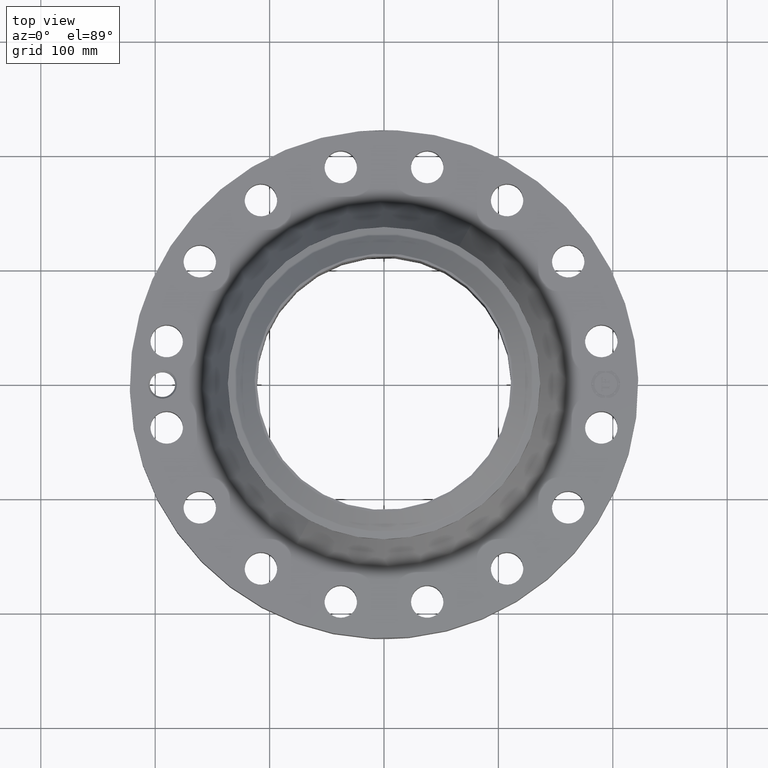
[diagram: clean part render]
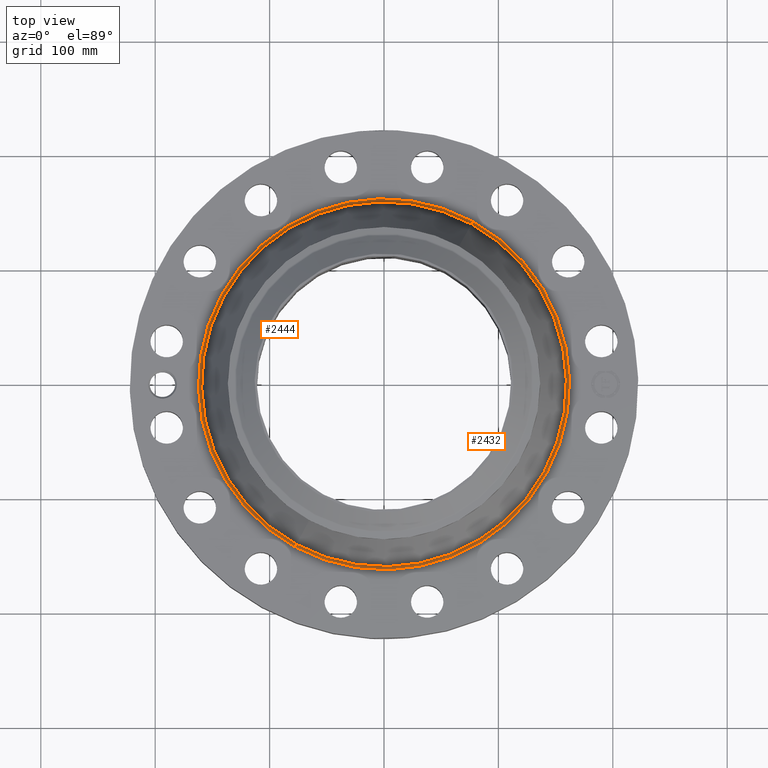
[diagram: same view with one multi-face feature highlighted, each face labeled with its STEP entity id]
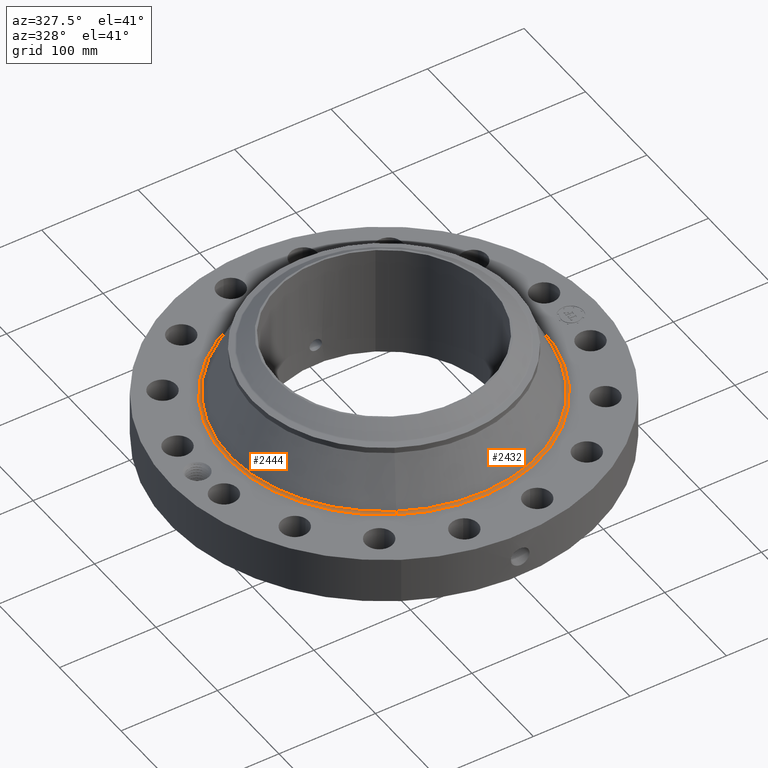
[diagram: same view with one multi-face feature highlighted, each face labeled with its STEP entity id]
A machine part, top view. The highlighted faces form ONE feature: a constant-radius fillet chain: 2 tangent blend faces with common blend radius 3.048 mm. The faces share edges in the B-rep.
A second angle (auxiliary view) of the same feature is appended — it is thin or edge-on in the first view.
Their STEP definitions:
[1] entity #2444 (Torus):
#707=AXIS2_PLACEMENT_3D('Circle Axis2P3D',#705,#706,$) ;
#2405=AXIS2_PLACEMENT_3D('Torus Axis2P3D',#2402,#2403,#2404) ;
#2409=AXIS2_PLACEMENT_3D('Circle Axis2P3D',#2407,#2408,$) ;
#2423=AXIS2_PLACEMENT_3D('Circle Axis2P3D',#2421,#2422,$) ;
#2435=AXIS2_PLACEMENT_3D('Circle Axis2P3D',#2433,#2434,$) ;
#705=CARTESIAN_POINT('Axis2P3D Location',(0.,0.,1.94000000001)) ;
#709=CARTESIAN_POINT('Vertex',(-3.06135849607,-5.60377913882,1.94000000001)) ;
#711=CARTESIAN_POINT('Vertex',(3.06135849607,5.60377913882,1.94000000001)) ;
#2402=CARTESIAN_POINT('Axis2P3D Location',(0.,0.,2.06000000001)) ;
#2407=CARTESIAN_POINT('Axis2P3D Location',(3.06135849607,5.60377913882,2.06000000001)) ;
#2411=CARTESIAN_POINT('Vertex',(3.00950355542,5.50885930664,2.00802605857)) ;
#2418=CARTESIAN_POINT('Vertex',(-3.00950355542,-5.50885930664,2.00802605857)) ;
#2421=CARTESIAN_POINT('Axis2P3D Location',(-3.06135849607,-5.60377913882,2.06000000001)) ;
#2433=CARTESIAN_POINT('Axis2P3D Location',(0.,0.,2.00802605857)) ;
#706=DIRECTION('Axis2P3D Direction',(0.,0.,-0.0393700787402)) ;
#2403=DIRECTION('Axis2P3D Direction',(0.,0.,-0.0393700787402)) ;
#2404=DIRECTION('Axis2P3D XDirection',(-0.0188750212049,-0.0345504945626,0.)) ;
#2408=DIRECTION('Axis2P3D Direction',(-0.0345504945626,0.0188750212049,0.)) ;
#2422=DIRECTION('Axis2P3D Direction',(0.0345504945626,-0.0188750212049,0.)) ;
#2434=DIRECTION('Axis2P3D Direction',(0.,0.,-0.0393700787402)) ;
#2439=ORIENTED_EDGE('',*,*,#713,.F.) ;
#2440=ORIENTED_EDGE('',*,*,#2425,.T.) ;
#2441=ORIENTED_EDGE('',*,*,#2437,.T.) ;
#2442=ORIENTED_EDGE('',*,*,#2413,.F.) ;
#2444=ADVANCED_FACE('PartBody',(#2443),#2406,.F.) ;
#708=CIRCLE('generated circle',#707,6.38547229875) ;
#2410=CIRCLE('generated circle',#2409,0.12) ;
#2424=CIRCLE('generated circle',#2423,0.12) ;
#2436=CIRCLE('generated circle',#2435,6.2773117264) ;
#2406=TOROIDAL_SURFACE('homeo Torus',#2405,6.38547229875,0.12) ;
#713=EDGE_CURVE('',#710,#712,#708,.T.) ;
#2413=EDGE_CURVE('',#712,#2412,#2410,.T.) ;
#2425=EDGE_CURVE('',#710,#2419,#2424,.T.) ;
#2437=EDGE_CURVE('',#2419,#2412,#2436,.T.) ;
#2438=EDGE_LOOP('',(#2439,#2440,#2441,#2442)) ;
#2443=FACE_OUTER_BOUND('',#2438,.T.) ;
#710=VERTEX_POINT('',#709) ;
#712=VERTEX_POINT('',#711) ;
#2412=VERTEX_POINT('',#2411) ;
#2419=VERTEX_POINT('',#2418) ;
[2] entity #2432 (Torus):
#716=AXIS2_PLACEMENT_3D('Circle Axis2P3D',#714,#715,$) ;
#2405=AXIS2_PLACEMENT_3D('Torus Axis2P3D',#2402,#2403,#2404) ;
#2409=AXIS2_PLACEMENT_3D('Circle Axis2P3D',#2407,#2408,$) ;
#2416=AXIS2_PLACEMENT_3D('Circle Axis2P3D',#2414,#2415,$) ;
#2423=AXIS2_PLACEMENT_3D('Circle Axis2P3D',#2421,#2422,$) ;
#709=CARTESIAN_POINT('Vertex',(-3.06135849607,-5.60377913882,1.94000000001)) ;
#711=CARTESIAN_POINT('Vertex',(3.06135849607,5.60377913882,1.94000000001)) ;
#714=CARTESIAN_POINT('Axis2P3D Location',(0.,0.,1.94000000001)) ;
#2402=CARTESIAN_POINT('Axis2P3D Location',(0.,0.,2.06000000001)) ;
#2407=CARTESIAN_POINT('Axis2P3D Location',(3.06135849607,5.60377913882,2.06000000001)) ;
#2411=CARTESIAN_POINT('Vertex',(3.00950355542,5.50885930664,2.00802605857)) ;
#2414=CARTESIAN_POINT('Axis2P3D Location',(0.,0.,2.00802605857)) ;
#2418=CARTESIAN_POINT('Vertex',(-3.00950355542,-5.50885930664,2.00802605857)) ;
#2421=CARTESIAN_POINT('Axis2P3D Location',(-3.06135849607,-5.60377913882,2.06000000001)) ;
#715=DIRECTION('Axis2P3D Direction',(0.,0.,-0.0393700787402)) ;
#2403=DIRECTION('Axis2P3D Direction',(0.,0.,-0.0393700787402)) ;
#2404=DIRECTION('Axis2P3D XDirection',(-0.0188750212049,-0.0345504945626,0.)) ;
#2408=DIRECTION('Axis2P3D Direction',(-0.0345504945626,0.0188750212049,0.)) ;
#2415=DIRECTION('Axis2P3D Direction',(0.,0.,-0.0393700787402)) ;
#2422=DIRECTION('Axis2P3D Direction',(0.0345504945626,-0.0188750212049,0.)) ;
#2427=ORIENTED_EDGE('',*,*,#718,.F.) ;
#2428=ORIENTED_EDGE('',*,*,#2413,.T.) ;
#2429=ORIENTED_EDGE('',*,*,#2420,.T.) ;
#2430=ORIENTED_EDGE('',*,*,#2425,.F.) ;
#2432=ADVANCED_FACE('PartBody',(#2431),#2406,.F.) ;
#717=CIRCLE('generated circle',#716,6.38547229875) ;
#2410=CIRCLE('generated circle',#2409,0.12) ;
#2417=CIRCLE('generated circle',#2416,6.2773117264) ;
#2424=CIRCLE('generated circle',#2423,0.12) ;
#2406=TOROIDAL_SURFACE('homeo Torus',#2405,6.38547229875,0.12) ;
#718=EDGE_CURVE('',#712,#710,#717,.T.) ;
#2413=EDGE_CURVE('',#712,#2412,#2410,.T.) ;
#2420=EDGE_CURVE('',#2412,#2419,#2417,.T.) ;
#2425=EDGE_CURVE('',#710,#2419,#2424,.T.) ;
#2426=EDGE_LOOP('',(#2427,#2428,#2429,#2430)) ;
#2431=FACE_OUTER_BOUND('',#2426,.T.) ;
#710=VERTEX_POINT('',#709) ;
#712=VERTEX_POINT('',#711) ;
#2412=VERTEX_POINT('',#2411) ;
#2419=VERTEX_POINT('',#2418) ;